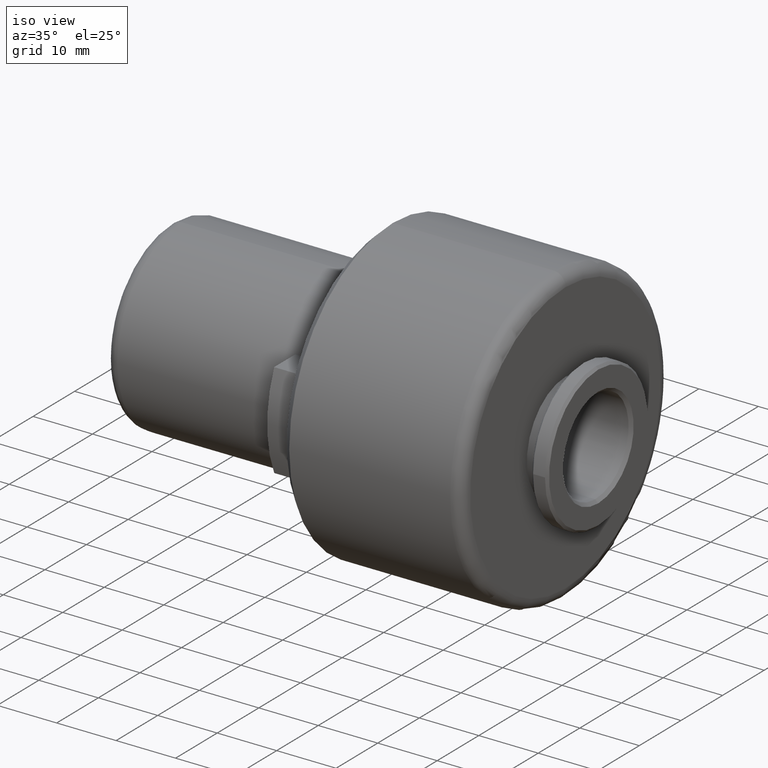
[diagram: clean part render]
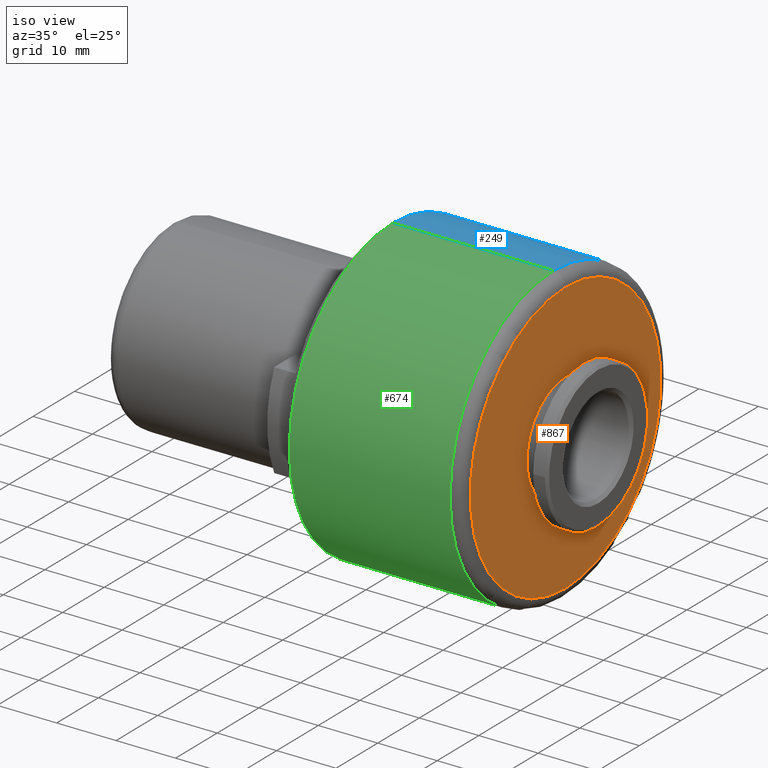
[diagram: same view with three faces highlighted in distinct colors, each labeled with its STEP entity id]
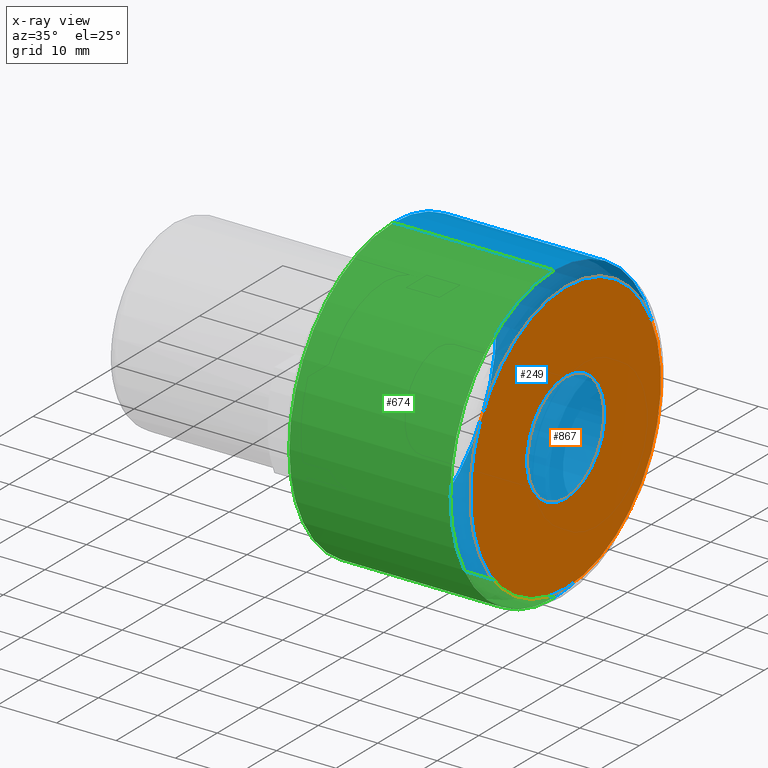
[diagram: x-ray of the same camera — body ghosted, the three highlighted faces saturated]
A machine part, iso view with three faces highlighted in distinct colors.
The next image is the same camera in x-ray (body ghosted, the three faces saturated) — at least one of them is partly hidden behind the body in this view.
Their STEP definitions:

[orange] entity #867 — the highlighted planar face has unit normal (1, -0, 0).
#72 = VERTEX_POINT ( 'NONE', #382 ) ;
#84 = AXIS2_PLACEMENT_3D ( 'NONE', #348, #152, #803 ) ;
#108 = EDGE_CURVE ( 'NONE', #1366, #717, #1263, .T. ) ;
#152 = DIRECTION ( 'NONE',  ( -1.000000000000000000, -0.0000000000000000000, -0.0000000000000000000 ) ) ;
#159 = CIRCLE ( 'NONE', #84, 9.300000000000000700 ) ;
#217 = CARTESIAN_POINT ( 'NONE',  ( 66.59999999999999400, -23.57959999999999900, 23.57959999999999900 ) ) ;
#241 = EDGE_CURVE ( 'NONE', #717, #1366, #294, .T. ) ;
#271 = DIRECTION ( 'NONE',  ( 1.000000000000000000, -0.0000000000000000000, 0.0000000000000000000 ) ) ;
#280 = FACE_BOUND ( 'NONE', #723, .T. ) ;
#294 = CIRCLE ( 'NONE', #1277, 22.89999999999999500 ) ;
#348 = CARTESIAN_POINT ( 'NONE',  ( 66.59999999999999400, 0.0000000000000000000, 0.0000000000000000000 ) ) ;
#352 = CARTESIAN_POINT ( 'NONE',  ( 66.59999999999999400, 0.0000000000000000000, -22.89999999999999500 ) ) ;
#382 = CARTESIAN_POINT ( 'NONE',  ( 66.59999999999999400, 0.0000000000000000000, 9.300000000000000700 ) ) ;
#389 = CARTESIAN_POINT ( 'NONE',  ( 66.59999999999999400, 0.0000000000000000000, 0.0000000000000000000 ) ) ;
#449 = PLANE ( 'NONE',  #1383 ) ;
#455 = CARTESIAN_POINT ( 'NONE',  ( 66.59999999999999400, 0.0000000000000000000, 0.0000000000000000000 ) ) ;
#507 = CIRCLE ( 'NONE', #768, 9.300000000000000700 ) ;
#549 = FACE_OUTER_BOUND ( 'NONE', #1055, .T. ) ;
#565 = DIRECTION ( 'NONE',  ( 0.0000000000000000000, 0.0000000000000000000, -1.000000000000000000 ) ) ;
#572 = DIRECTION ( 'NONE',  ( 0.0000000000000000000, 0.0000000000000000000, 1.000000000000000000 ) ) ;
#650 = EDGE_CURVE ( 'NONE', #72, #683, #159, .T. ) ;
#653 = DIRECTION ( 'NONE',  ( 1.000000000000000000, -0.0000000000000000000, 0.0000000000000000000 ) ) ;
#683 = VERTEX_POINT ( 'NONE', #1029 ) ;
#690 = ORIENTED_EDGE ( 'NONE', *, *, #650, .T. ) ;
#717 = VERTEX_POINT ( 'NONE', #352 ) ;
#723 = EDGE_LOOP ( 'NONE', ( #690, #1018 ) ) ;
#768 = AXIS2_PLACEMENT_3D ( 'NONE', #455, #1242, #572 ) ;
#803 = DIRECTION ( 'NONE',  ( 0.0000000000000000000, 0.0000000000000000000, 1.000000000000000000 ) ) ;
#824 = ORIENTED_EDGE ( 'NONE', *, *, #108, .T. ) ;
#867 = ADVANCED_FACE ( 'NONE', ( #549, #280 ), #449, .T. ) ;
#898 = CARTESIAN_POINT ( 'NONE',  ( 66.59999999999999400, 2.926905849962173700E-015, 22.89999999999999500 ) ) ;
#902 = EDGE_CURVE ( 'NONE', #683, #72, #507, .T. ) ;
#1018 = ORIENTED_EDGE ( 'NONE', *, *, #902, .T. ) ;
#1029 = CARTESIAN_POINT ( 'NONE',  ( 66.59999999999999400, 1.138921523207038600E-015, -9.300000000000000700 ) ) ;
#1055 = EDGE_LOOP ( 'NONE', ( #1131, #824 ) ) ;
#1091 = DIRECTION ( 'NONE',  ( 0.0000000000000000000, 0.0000000000000000000, -1.000000000000000000 ) ) ;
#1110 = DIRECTION ( 'NONE',  ( 0.0000000000000000000, 0.0000000000000000000, -1.000000000000000000 ) ) ;
#1131 = ORIENTED_EDGE ( 'NONE', *, *, #241, .T. ) ;
#1236 = DIRECTION ( 'NONE',  ( 1.000000000000000000, -0.0000000000000000000, 0.0000000000000000000 ) ) ;
#1242 = DIRECTION ( 'NONE',  ( -1.000000000000000000, -0.0000000000000000000, -0.0000000000000000000 ) ) ;
#1263 = CIRCLE ( 'NONE', #1353, 22.89999999999999500 ) ;
#1277 = AXIS2_PLACEMENT_3D ( 'NONE', #1356, #653, #1110 ) ;
#1353 = AXIS2_PLACEMENT_3D ( 'NONE', #389, #271, #1091 ) ;
#1356 = CARTESIAN_POINT ( 'NONE',  ( 66.59999999999999400, 0.0000000000000000000, 0.0000000000000000000 ) ) ;
#1366 = VERTEX_POINT ( 'NONE', #898 ) ;
#1383 = AXIS2_PLACEMENT_3D ( 'NONE', #217, #1236, #565 ) ;

[blue] entity #249 — the highlighted cylindrical surface (partial cylindrical patch) has radius 24.9 mm, axis along (-1, 0, 0).
#42 = VERTEX_POINT ( 'NONE', #393 ) ;
#66 = AXIS2_PLACEMENT_3D ( 'NONE', #975, #1101, #748 ) ;
#135 = VERTEX_POINT ( 'NONE', #736 ) ;
#142 = EDGE_CURVE ( 'NONE', #1404, #42, #670, .T. ) ;
#226 = CARTESIAN_POINT ( 'NONE',  ( 50.87143376199999500, 0.0000000000000000000, 0.0000000000000000000 ) ) ;
#249 = ADVANCED_FACE ( 'NONE', ( #866 ), #829, .T. ) ;
#250 = CIRCLE ( 'NONE', #534, 24.89999999999999900 ) ;
#287 = ORIENTED_EDGE ( 'NONE', *, *, #142, .T. ) ;
#329 = DIRECTION ( 'NONE',  ( -1.000000000000000000, 0.0000000000000000000, 0.0000000000000000000 ) ) ;
#363 = ORIENTED_EDGE ( 'NONE', *, *, #641, .F. ) ;
#393 = CARTESIAN_POINT ( 'NONE',  ( 37.54999999999996900, 3.049370529876905700E-015, 24.89999999999997000 ) ) ;
#425 = VECTOR ( 'NONE', #329, 1000.000000000000000 ) ;
#434 = CARTESIAN_POINT ( 'NONE',  ( 64.59999999999999400, 0.0000000000000000000, 0.0000000000000000000 ) ) ;
#462 = LINE ( 'NONE', #1043, #425 ) ;
#516 = ORIENTED_EDGE ( 'NONE', *, *, #1316, .T. ) ;
#534 = AXIS2_PLACEMENT_3D ( 'NONE', #434, #1217, #551 ) ;
#544 = VERTEX_POINT ( 'NONE', #1408 ) ;
#551 = DIRECTION ( 'NONE',  ( 0.0000000000000000000, 0.0000000000000000000, -1.000000000000000000 ) ) ;
#641 = EDGE_CURVE ( 'NONE', #135, #42, #462, .T. ) ;
#670 = CIRCLE ( 'NONE', #66, 24.89999999999999900 ) ;
#699 = LINE ( 'NONE', #1020, #883 ) ;
#736 = CARTESIAN_POINT ( 'NONE',  ( 64.59999999999999400, 0.0000000000000000000, 24.89999999999999900 ) ) ;
#748 = DIRECTION ( 'NONE',  ( 1.114681751631683300E-015, 0.0000000000000000000, -1.000000000000000000 ) ) ;
#798 = EDGE_CURVE ( 'NONE', #544, #1404, #699, .T. ) ;
#827 = DIRECTION ( 'NONE',  ( -1.000000000000000000, 0.0000000000000000000, 0.0000000000000000000 ) ) ;
#829 = CYLINDRICAL_SURFACE ( 'NONE', #1096, 24.89999999999999900 ) ;
#866 = FACE_OUTER_BOUND ( 'NONE', #870, .T. ) ;
#870 = EDGE_LOOP ( 'NONE', ( #516, #1042, #287, #363 ) ) ;
#883 = VECTOR ( 'NONE', #1206, 1000.000000000000000 ) ;
#975 = CARTESIAN_POINT ( 'NONE',  ( 37.54999999999996900, 0.0000000000000000000, 0.0000000000000000000 ) ) ;
#1020 = CARTESIAN_POINT ( 'NONE',  ( 50.87143376199999500, 3.049370529876909300E-015, -24.89999999999999900 ) ) ;
#1034 = DIRECTION ( 'NONE',  ( 0.0000000000000000000, 0.0000000000000000000, 1.000000000000000000 ) ) ;
#1042 = ORIENTED_EDGE ( 'NONE', *, *, #798, .T. ) ;
#1043 = CARTESIAN_POINT ( 'NONE',  ( 50.87143376199999500, 0.0000000000000000000, 24.89999999999999900 ) ) ;
#1096 = AXIS2_PLACEMENT_3D ( 'NONE', #226, #827, #1034 ) ;
#1101 = DIRECTION ( 'NONE',  ( 1.000000000000000000, 0.0000000000000000000, 0.0000000000000000000 ) ) ;
#1206 = DIRECTION ( 'NONE',  ( -1.000000000000000000, 0.0000000000000000000, 0.0000000000000000000 ) ) ;
#1217 = DIRECTION ( 'NONE',  ( -1.000000000000000000, 0.0000000000000000000, -0.0000000000000000000 ) ) ;
#1316 = EDGE_CURVE ( 'NONE', #135, #544, #250, .T. ) ;
#1374 = CARTESIAN_POINT ( 'NONE',  ( 37.54999999999996900, 0.0000000000000000000, -24.89999999999997000 ) ) ;
#1404 = VERTEX_POINT ( 'NONE', #1374 ) ;
#1408 = CARTESIAN_POINT ( 'NONE',  ( 64.59999999999999400, 3.049370529876909300E-015, -24.89999999999999900 ) ) ;

[green] entity #674 — the highlighted cylindrical surface (partial cylindrical patch) has radius 24.9 mm, axis along (-1, 0, 0).
#42 = VERTEX_POINT ( 'NONE', #393 ) ;
#86 = CYLINDRICAL_SURFACE ( 'NONE', #1283, 24.89999999999999900 ) ;
#124 = FACE_OUTER_BOUND ( 'NONE', #432, .T. ) ;
#129 = DIRECTION ( 'NONE',  ( 1.000000000000000000, 0.0000000000000000000, 0.0000000000000000000 ) ) ;
#135 = VERTEX_POINT ( 'NONE', #736 ) ;
#329 = DIRECTION ( 'NONE',  ( -1.000000000000000000, 0.0000000000000000000, 0.0000000000000000000 ) ) ;
#356 = DIRECTION ( 'NONE',  ( 1.114681751631683300E-015, 0.0000000000000000000, -1.000000000000000000 ) ) ;
#393 = CARTESIAN_POINT ( 'NONE',  ( 37.54999999999996900, 3.049370529876905700E-015, 24.89999999999997000 ) ) ;
#406 = ORIENTED_EDGE ( 'NONE', *, *, #641, .T. ) ;
#425 = VECTOR ( 'NONE', #329, 1000.000000000000000 ) ;
#429 = DIRECTION ( 'NONE',  ( -1.000000000000000000, 0.0000000000000000000, -0.0000000000000000000 ) ) ;
#432 = EDGE_LOOP ( 'NONE', ( #652, #980, #406, #531 ) ) ;
#462 = LINE ( 'NONE', #1043, #425 ) ;
#482 = EDGE_CURVE ( 'NONE', #42, #1404, #1287, .T. ) ;
#531 = ORIENTED_EDGE ( 'NONE', *, *, #482, .T. ) ;
#544 = VERTEX_POINT ( 'NONE', #1408 ) ;
#564 = CARTESIAN_POINT ( 'NONE',  ( 50.87143376199999500, 0.0000000000000000000, 0.0000000000000000000 ) ) ;
#641 = EDGE_CURVE ( 'NONE', #135, #42, #462, .T. ) ;
#652 = ORIENTED_EDGE ( 'NONE', *, *, #798, .F. ) ;
#674 = ADVANCED_FACE ( 'NONE', ( #124 ), #86, .T. ) ;
#695 = AXIS2_PLACEMENT_3D ( 'NONE', #811, #129, #356 ) ;
#699 = LINE ( 'NONE', #1020, #883 ) ;
#735 = CIRCLE ( 'NONE', #790, 24.89999999999999900 ) ;
#736 = CARTESIAN_POINT ( 'NONE',  ( 64.59999999999999400, 0.0000000000000000000, 24.89999999999999900 ) ) ;
#790 = AXIS2_PLACEMENT_3D ( 'NONE', #1105, #429, #1215 ) ;
#798 = EDGE_CURVE ( 'NONE', #544, #1404, #699, .T. ) ;
#807 = DIRECTION ( 'NONE',  ( 0.0000000000000000000, 0.0000000000000000000, 1.000000000000000000 ) ) ;
#811 = CARTESIAN_POINT ( 'NONE',  ( 37.54999999999996900, 0.0000000000000000000, 0.0000000000000000000 ) ) ;
#883 = VECTOR ( 'NONE', #1206, 1000.000000000000000 ) ;
#980 = ORIENTED_EDGE ( 'NONE', *, *, #1082, .T. ) ;
#1020 = CARTESIAN_POINT ( 'NONE',  ( 50.87143376199999500, 3.049370529876909300E-015, -24.89999999999999900 ) ) ;
#1043 = CARTESIAN_POINT ( 'NONE',  ( 50.87143376199999500, 0.0000000000000000000, 24.89999999999999900 ) ) ;
#1082 = EDGE_CURVE ( 'NONE', #544, #135, #735, .T. ) ;
#1105 = CARTESIAN_POINT ( 'NONE',  ( 64.59999999999999400, 0.0000000000000000000, 0.0000000000000000000 ) ) ;
#1135 = DIRECTION ( 'NONE',  ( -1.000000000000000000, 0.0000000000000000000, 0.0000000000000000000 ) ) ;
#1206 = DIRECTION ( 'NONE',  ( -1.000000000000000000, 0.0000000000000000000, 0.0000000000000000000 ) ) ;
#1215 = DIRECTION ( 'NONE',  ( 0.0000000000000000000, 0.0000000000000000000, -1.000000000000000000 ) ) ;
#1283 = AXIS2_PLACEMENT_3D ( 'NONE', #564, #1135, #807 ) ;
#1287 = CIRCLE ( 'NONE', #695, 24.89999999999999900 ) ;
#1374 = CARTESIAN_POINT ( 'NONE',  ( 37.54999999999996900, 0.0000000000000000000, -24.89999999999997000 ) ) ;
#1404 = VERTEX_POINT ( 'NONE', #1374 ) ;
#1408 = CARTESIAN_POINT ( 'NONE',  ( 64.59999999999999400, 3.049370529876909300E-015, -24.89999999999999900 ) ) ;